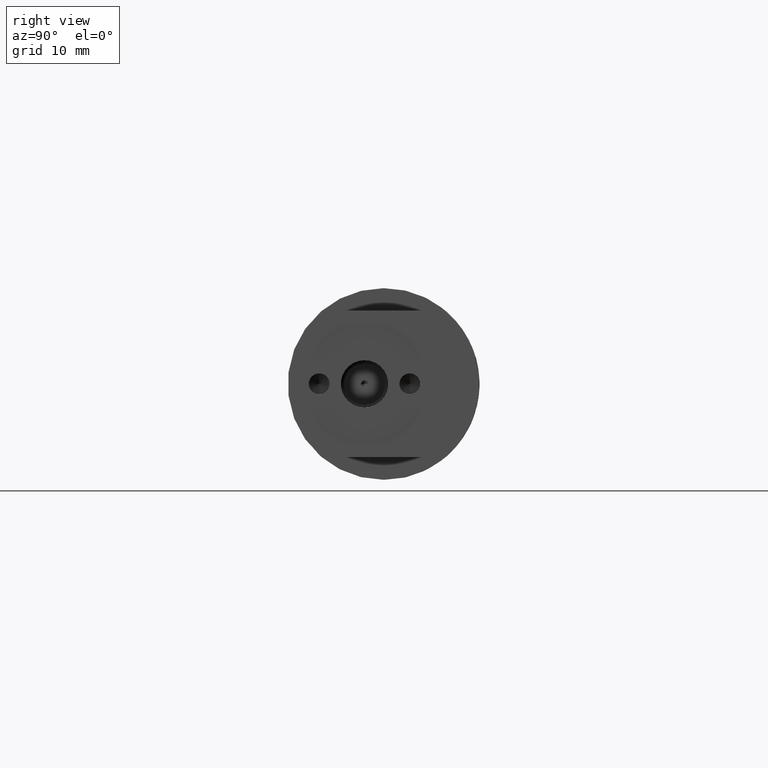
[diagram: clean part render]
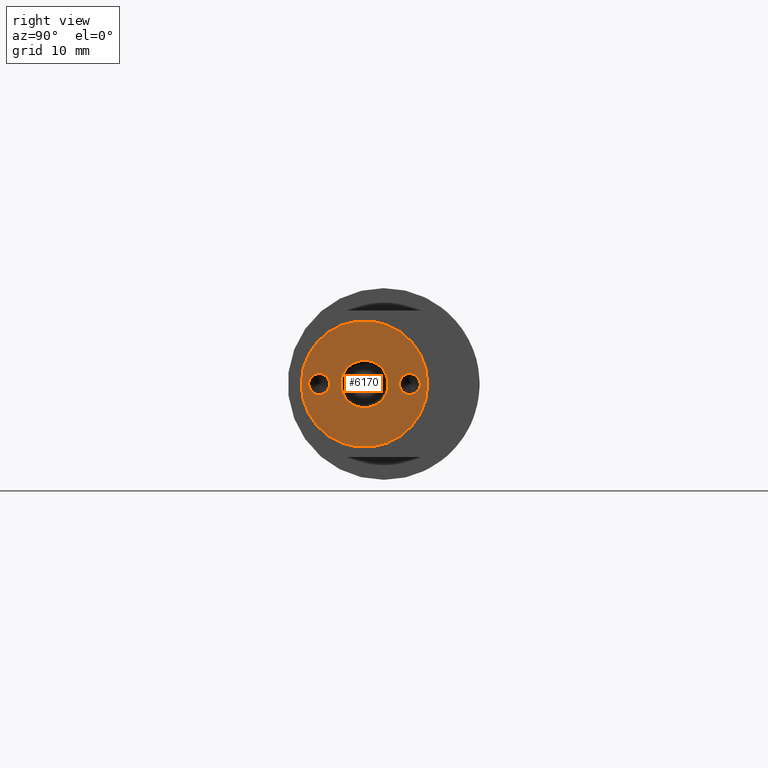
[diagram: same view with one face highlighted and labeled with its STEP entity id]
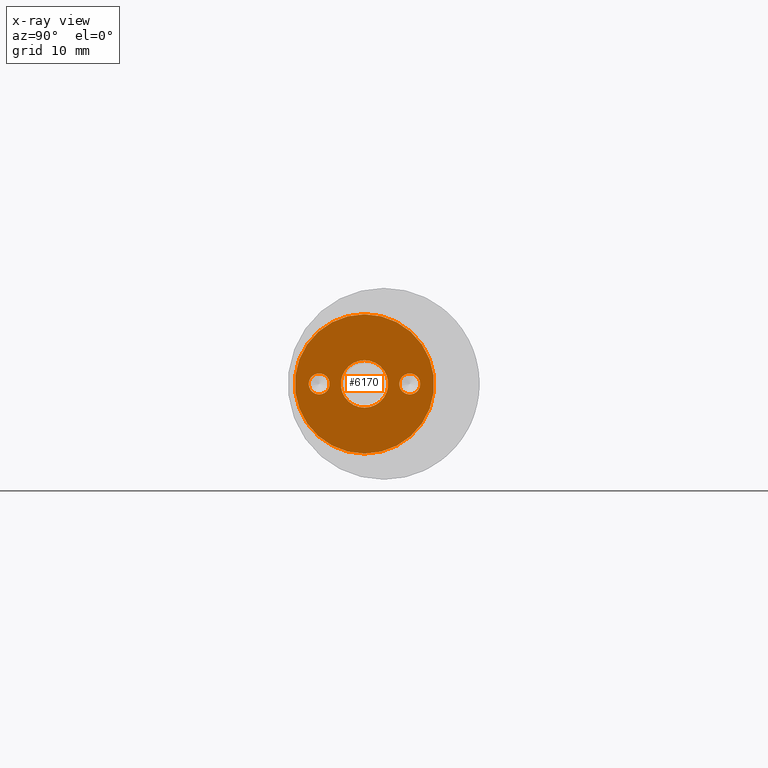
[diagram: x-ray of the same camera — body ghosted, the highlighted face saturated]
A machine part, right view. The second image highlights one B-rep face of the part: STEP entity #6170.
The next image is the same camera in x-ray: the body ghosted, the highlighted face saturated — about 0% of this face is hidden behind the body in this view.
In plain terms, the highlighted planar face has unit normal (1, 0, 0).
Its self-contained STEP definition (entity closure, byte-faithful):
#262 = DIRECTION ( 'NONE',  ( 0.0000000000000000000, 0.0000000000000000000, -1.000000000000000000 ) ) ;
#367 = EDGE_CURVE ( 'NONE', #10354, #7568, #19529, .T. ) ;
#393 = CARTESIAN_POINT ( 'NONE',  ( -0.2500000000000069900, -9.250000000000000000, 1.499999999999999600 ) ) ;
#614 = VERTEX_POINT ( 'NONE', #11159 ) ;
#721 = CARTESIAN_POINT ( 'NONE',  ( -0.2500000000000069900, -2.750000000000000000, -4.319764336209129900E-016 ) ) ;
#849 = EDGE_LOOP ( 'NONE', ( #21114, #13051 ) ) ;
#864 = DIRECTION ( 'NONE',  ( 1.000000000000000000, 0.0000000000000000000, 0.0000000000000000000 ) ) ;
#1445 = VERTEX_POINT ( 'NONE', #6715 ) ;
#1620 = CARTESIAN_POINT ( 'NONE',  ( -0.2500000000000069900, -2.750000000000000000, -4.319764336209129900E-016 ) ) ;
#1818 = CARTESIAN_POINT ( 'NONE',  ( -0.2500000000000069900, 3.750000000000000000, -4.319764336209129900E-016 ) ) ;
#2738 = VERTEX_POINT ( 'NONE', #7790 ) ;
#2761 = AXIS2_PLACEMENT_3D ( 'NONE', #1620, #13119, #11261 ) ;
#3665 = DIRECTION ( 'NONE',  ( 1.000000000000000000, 0.0000000000000000000, 0.0000000000000000000 ) ) ;
#3962 = AXIS2_PLACEMENT_3D ( 'NONE', #13494, #3665, #13779 ) ;
#3966 = CARTESIAN_POINT ( 'NONE',  ( -0.2500000000000069900, -2.750000000000000000, -4.319764336209129900E-016 ) ) ;
#3987 = VERTEX_POINT ( 'NONE', #4901 ) ;
#4043 = DIRECTION ( 'NONE',  ( 1.000000000000000000, 0.0000000000000000000, 0.0000000000000000000 ) ) ;
#4901 = CARTESIAN_POINT ( 'NONE',  ( -0.2500000000000069900, 3.750000000000000000, 1.499999999999999600 ) ) ;
#5538 = DIRECTION ( 'NONE',  ( 0.0000000000000000000, 0.0000000000000000000, -1.000000000000000000 ) ) ;
#5602 = EDGE_CURVE ( 'NONE', #18425, #614, #17372, .T. ) ;
#5719 = CIRCLE ( 'NONE', #18043, 1.500000000000000000 ) ;
#5787 = ORIENTED_EDGE ( 'NONE', *, *, #9712, .F. ) ;
#5854 = ORIENTED_EDGE ( 'NONE', *, *, #367, .F. ) ;
#6170 = ADVANCED_FACE ( 'NONE', ( #17424, #15882, #19173, #21201 ), #10031, .T. ) ;
#6573 = CIRCLE ( 'NONE', #3962, 1.500000000000000000 ) ;
#6715 = CARTESIAN_POINT ( 'NONE',  ( -0.2500000000000069900, -2.749999999999999600, 3.399999999999999500 ) ) ;
#6968 = EDGE_CURVE ( 'NONE', #3987, #2738, #8914, .T. ) ;
#7415 = DIRECTION ( 'NONE',  ( 0.0000000000000000000, 0.0000000000000000000, -1.000000000000000000 ) ) ;
#7417 = DIRECTION ( 'NONE',  ( 0.0000000000000000000, 0.0000000000000000000, -1.000000000000000000 ) ) ;
#7568 = VERTEX_POINT ( 'NONE', #20014 ) ;
#7603 = CARTESIAN_POINT ( 'NONE',  ( -0.2500000000000069900, 3.750000000000000000, -4.319764336209129900E-016 ) ) ;
#7790 = CARTESIAN_POINT ( 'NONE',  ( -0.2500000000000069900, 3.750000000000000000, -1.500000000000000400 ) ) ;
#8662 = EDGE_CURVE ( 'NONE', #7568, #10354, #6573, .T. ) ;
#8914 = CIRCLE ( 'NONE', #19634, 1.500000000000000000 ) ;
#9342 = EDGE_LOOP ( 'NONE', ( #20306, #5854 ) ) ;
#9620 = DIRECTION ( 'NONE',  ( 1.000000000000000000, 0.0000000000000000000, 0.0000000000000000000 ) ) ;
#9712 = EDGE_CURVE ( 'NONE', #1445, #16216, #18621, .T. ) ;
#10031 = PLANE ( 'NONE',  #15773 ) ;
#10354 = VERTEX_POINT ( 'NONE', #393 ) ;
#10763 = AXIS2_PLACEMENT_3D ( 'NONE', #17835, #9620, #21106 ) ;
#10996 = DIRECTION ( 'NONE',  ( 1.000000000000000000, 0.0000000000000000000, 0.0000000000000000000 ) ) ;
#11070 = DIRECTION ( 'NONE',  ( 0.0000000000000000000, 0.0000000000000000000, -1.000000000000000000 ) ) ;
#11159 = CARTESIAN_POINT ( 'NONE',  ( -0.2500000000000069900, -2.749999999999998700, 10.00000000000000000 ) ) ;
#11261 = DIRECTION ( 'NONE',  ( 0.0000000000000000000, 0.0000000000000000000, -1.000000000000000000 ) ) ;
#11271 = EDGE_CURVE ( 'NONE', #614, #18425, #16059, .T. ) ;
#11682 = DIRECTION ( 'NONE',  ( 0.0000000000000000000, 0.0000000000000000000, -1.000000000000000000 ) ) ;
#12544 = EDGE_LOOP ( 'NONE', ( #16966, #5787 ) ) ;
#12928 = EDGE_LOOP ( 'NONE', ( #16486, #14156 ) ) ;
#12998 = EDGE_CURVE ( 'NONE', #2738, #3987, #5719, .T. ) ;
#13051 = ORIENTED_EDGE ( 'NONE', *, *, #6968, .F. ) ;
#13119 = DIRECTION ( 'NONE',  ( 1.000000000000000000, 0.0000000000000000000, 0.0000000000000000000 ) ) ;
#13303 = DIRECTION ( 'NONE',  ( 1.000000000000000000, 0.0000000000000000000, 0.0000000000000000000 ) ) ;
#13494 = CARTESIAN_POINT ( 'NONE',  ( -0.2500000000000069900, -9.250000000000000000, -4.319764336209129900E-016 ) ) ;
#13779 = DIRECTION ( 'NONE',  ( 0.0000000000000000000, 0.0000000000000000000, -1.000000000000000000 ) ) ;
#13858 = CARTESIAN_POINT ( 'NONE',  ( -0.2500000000000069900, -2.750000000000000000, -3.400000000000000400 ) ) ;
#13966 = CARTESIAN_POINT ( 'NONE',  ( -0.2500000000000069900, -2.750000000000000000, -4.319764336209129900E-016 ) ) ;
#14156 = ORIENTED_EDGE ( 'NONE', *, *, #11271, .T. ) ;
#14528 = AXIS2_PLACEMENT_3D ( 'NONE', #721, #4043, #7417 ) ;
#15116 = AXIS2_PLACEMENT_3D ( 'NONE', #3966, #15472, #5538 ) ;
#15472 = DIRECTION ( 'NONE',  ( 1.000000000000000000, 0.0000000000000000000, 0.0000000000000000000 ) ) ;
#15541 = CARTESIAN_POINT ( 'NONE',  ( -0.2500000000000069900, -2.750000000000000000, -10.00000000000000000 ) ) ;
#15773 = AXIS2_PLACEMENT_3D ( 'NONE', #21019, #16634, #11682 ) ;
#15882 = FACE_BOUND ( 'NONE', #9342, .T. ) ;
#16059 = CIRCLE ( 'NONE', #2761, 10.00000000000000000 ) ;
#16216 = VERTEX_POINT ( 'NONE', #13858 ) ;
#16486 = ORIENTED_EDGE ( 'NONE', *, *, #5602, .T. ) ;
#16634 = DIRECTION ( 'NONE',  ( 1.000000000000000000, 0.0000000000000000000, 0.0000000000000000000 ) ) ;
#16966 = ORIENTED_EDGE ( 'NONE', *, *, #18489, .F. ) ;
#17372 = CIRCLE ( 'NONE', #18083, 10.00000000000000000 ) ;
#17424 = FACE_BOUND ( 'NONE', #849, .T. ) ;
#17835 = CARTESIAN_POINT ( 'NONE',  ( -0.2500000000000069900, -9.250000000000000000, -4.319764336209129900E-016 ) ) ;
#18043 = AXIS2_PLACEMENT_3D ( 'NONE', #1818, #13303, #262 ) ;
#18083 = AXIS2_PLACEMENT_3D ( 'NONE', #13966, #864, #7415 ) ;
#18425 = VERTEX_POINT ( 'NONE', #15541 ) ;
#18489 = EDGE_CURVE ( 'NONE', #16216, #1445, #19443, .T. ) ;
#18621 = CIRCLE ( 'NONE', #15116, 3.399999999999999900 ) ;
#19173 = FACE_BOUND ( 'NONE', #12544, .T. ) ;
#19443 = CIRCLE ( 'NONE', #14528, 3.399999999999999900 ) ;
#19529 = CIRCLE ( 'NONE', #10763, 1.500000000000000000 ) ;
#19634 = AXIS2_PLACEMENT_3D ( 'NONE', #7603, #10996, #11070 ) ;
#20014 = CARTESIAN_POINT ( 'NONE',  ( -0.2500000000000069900, -9.250000000000000000, -1.500000000000000400 ) ) ;
#20306 = ORIENTED_EDGE ( 'NONE', *, *, #8662, .F. ) ;
#21019 = CARTESIAN_POINT ( 'NONE',  ( -0.2500000000000069900, -2.750000000000000000, -4.319764336209129900E-016 ) ) ;
#21106 = DIRECTION ( 'NONE',  ( 0.0000000000000000000, 0.0000000000000000000, -1.000000000000000000 ) ) ;
#21114 = ORIENTED_EDGE ( 'NONE', *, *, #12998, .F. ) ;
#21201 = FACE_OUTER_BOUND ( 'NONE', #12928, .T. ) ;